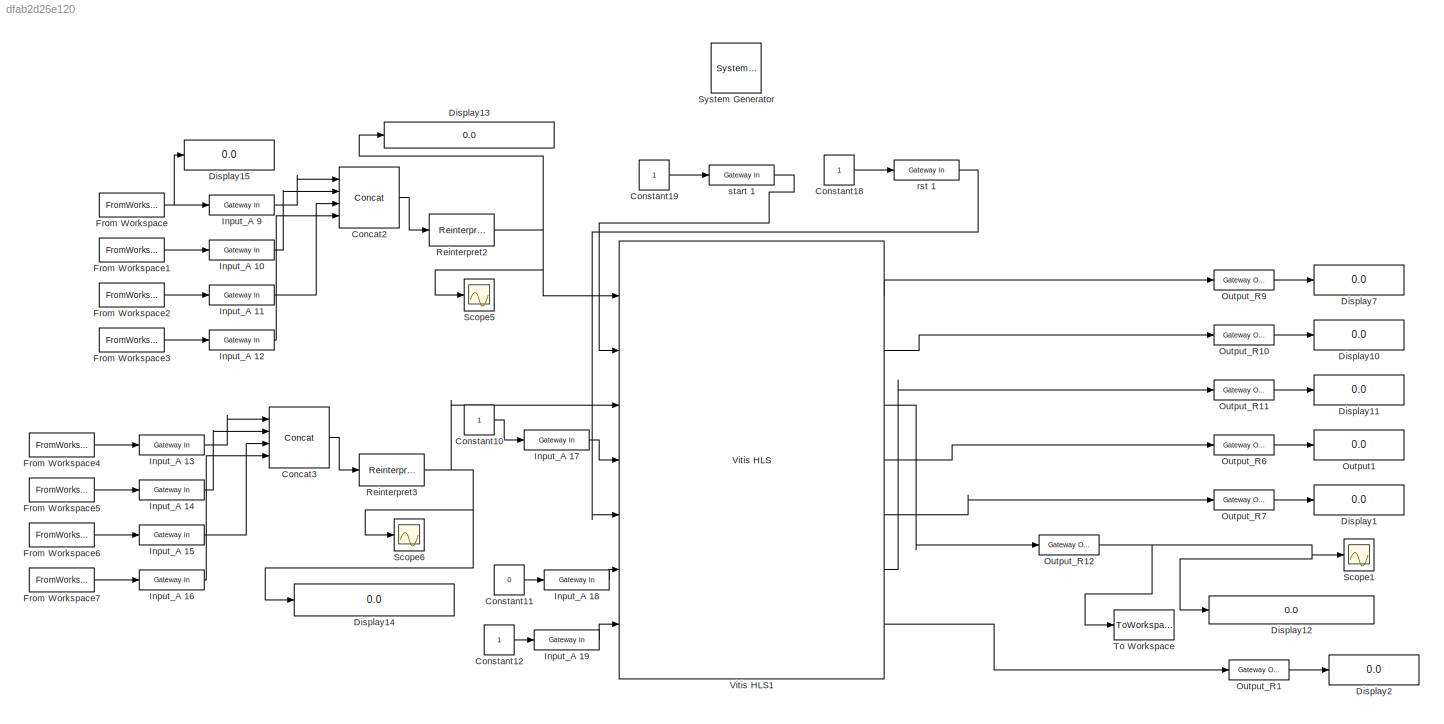
MODEL slx_dfab2d26e120
KIND model
CONFIG AbsTol = auto
CONFIG EnableMultiTasking = off
CONFIG FixedStep = auto
CONFIG MaxStep = auto
CONFIG MinStep = auto
CONFIG RelTol = 1e-3
CONFIG SampleTimeConstraint = Unconstrained
CONFIG SolverName = FixedStepDiscrete
CONFIG StartTime = 0.0
CONFIG StopTime = 55
BLOCK [Reference]  System Generator  REF=xbsIndex_r4/ System Generator
  AttributesFormatString = System\nGenerator
  Ports = []
  SourceBlock = xbsIndex_r4/ System Generator
  SourceType = Xilinx System Generator Block
  Tag = genX
  UserDataPersistent = on
BLOCK [Reference] Concat2  REF=hdlBasic/Concat
  Ports = [4, 1]
  SourceBlock = hdlBasic/Concat
  SourceType = Bus Concatenator Block
BLOCK [Reference] Concat3  REF=hdlBasic/Concat
  Ports = [4, 1]
  SourceBlock = hdlBasic/Concat
  SourceType = Bus Concatenator Block
BLOCK [Constant] Constant10
BLOCK [Constant] Constant11
  Value = 0
BLOCK [Constant] Constant12
BLOCK [Constant] Constant18
BLOCK [Constant] Constant19
BLOCK [Display] Display1
  Decimation = 1
  Ports = [1]
BLOCK [Display] Display10
  Decimation = 1
  Ports = [1]
BLOCK [Display] Display11
  Decimation = 1
  Ports = [1]
BLOCK [Display] Display12
  Decimation = 1
  Format = hex (Stored Integer)
  Ports = [1]
BLOCK [Display] Display13
  Decimation = 1
  Format = hex (Stored Integer)
  Ports = [1]
BLOCK [Display] Display14
  Decimation = 1
  Format = hex (Stored Integer)
  Ports = [1]
BLOCK [Display] Display15
  Decimation = 1
  Ports = [1]
BLOCK [Display] Display2
  Decimation = 1
  Ports = [1]
BLOCK [Display] Display7
  Decimation = 1
  Ports = [1]
BLOCK [FromWorkspace] From Workspace
  VariableName = a4
BLOCK [FromWorkspace] From Workspace1
  VariableName = a3
BLOCK [FromWorkspace] From Workspace2
  VariableName = a2
BLOCK [FromWorkspace] From Workspace3
  VariableName = a1
BLOCK [FromWorkspace] From Workspace4
  VariableName = b4
BLOCK [FromWorkspace] From Workspace5
  VariableName = b3
BLOCK [FromWorkspace] From Workspace6
  VariableName = b2
BLOCK [FromWorkspace] From Workspace7
  VariableName = b1
BLOCK [Reference] Input_A 10  REF=hdlBasic/Gateway In
  Ports = [1, 1]
  SourceBlock = hdlBasic/Gateway In
  SourceType = Gateway In Block
BLOCK [Reference] Input_A 11  REF=hdlBasic/Gateway In
  Ports = [1, 1]
  SourceBlock = hdlBasic/Gateway In
  SourceType = Gateway In Block
BLOCK [Reference] Input_A 12  REF=hdlBasic/Gateway In
  Ports = [1, 1]
  SourceBlock = hdlBasic/Gateway In
  SourceType = Gateway In Block
BLOCK [Reference] Input_A 13  REF=hdlBasic/Gateway In
  Ports = [1, 1]
  SourceBlock = hdlBasic/Gateway In
  SourceType = Gateway In Block
BLOCK [Reference] Input_A 14  REF=hdlBasic/Gateway In
  Ports = [1, 1]
  SourceBlock = hdlBasic/Gateway In
  SourceType = Gateway In Block
BLOCK [Reference] Input_A 15  REF=hdlBasic/Gateway In
  Ports = [1, 1]
  SourceBlock = hdlBasic/Gateway In
  SourceType = Gateway In Block
BLOCK [Reference] Input_A 16  REF=hdlBasic/Gateway In
  Ports = [1, 1]
  SourceBlock = hdlBasic/Gateway In
  SourceType = Gateway In Block
BLOCK [Reference] Input_A 17  REF=hdlBasic/Gateway In
  Ports = [1, 1]
  SourceBlock = hdlBasic/Gateway In
  SourceType = Gateway In Block
BLOCK [Reference] Input_A 18  REF=hdlBasic/Gateway In
  Ports = [1, 1]
  SourceBlock = hdlBasic/Gateway In
  SourceType = Gateway In Block
BLOCK [Reference] Input_A 19  REF=hdlBasic/Gateway In
  Ports = [1, 1]
  SourceBlock = hdlBasic/Gateway In
  SourceType = Gateway In Block
BLOCK [Reference] Input_A 9  REF=hdlBasic/Gateway In
  Ports = [1, 1]
  SourceBlock = hdlBasic/Gateway In
  SourceType = Gateway In Block
BLOCK [Display] Output1
  Decimation = 1
  Ports = [1]
BLOCK [Reference] Output_R1  REF=hdlBasic/Gateway Out
  Ports = [1, 1]
  SourceBlock = hdlBasic/Gateway Out
  SourceType = Gateway Out Block
BLOCK [Reference] Output_R10  REF=hdlBasic/Gateway Out
  Ports = [1, 1]
  SourceBlock = hdlBasic/Gateway Out
  SourceType = Gateway Out Block
BLOCK [Reference] Output_R11  REF=hdlBasic/Gateway Out
  Ports = [1, 1]
  SourceBlock = hdlBasic/Gateway Out
  SourceType = Gateway Out Block
BLOCK [Reference] Output_R12  REF=hdlBasic/Gateway Out
  Ports = [1, 1]
  SourceBlock = hdlBasic/Gateway Out
  SourceType = Gateway Out Block
BLOCK [Reference] Output_R6  REF=hdlBasic/Gateway Out
  Ports = [1, 1]
  SourceBlock = hdlBasic/Gateway Out
  SourceType = Gateway Out Block
BLOCK [Reference] Output_R7  REF=hdlBasic/Gateway Out
  Ports = [1, 1]
  SourceBlock = hdlBasic/Gateway Out
  SourceType = Gateway Out Block
BLOCK [Reference] Output_R9  REF=hdlBasic/Gateway Out
  Ports = [1, 1]
  SourceBlock = hdlBasic/Gateway Out
  SourceType = Gateway Out Block
BLOCK [Reference] Reinterpret2  REF=hdlBasic/Reinterpret
  Ports = [1, 1]
  SourceBlock = hdlBasic/Reinterpret
  SourceType = Type Reinterpreter Block
BLOCK [Reference] Reinterpret3  REF=hdlBasic/Reinterpret
  Ports = [1, 1]
  SourceBlock = hdlBasic/Reinterpret
  SourceType = Type Reinterpreter Block
BLOCK [Scope] Scope1
  Floating = off
  NumInputPorts = 1
  Ports = [1]
  ScopeSpecificationString = Simulink.scopes.TimeScopeBlockCfg('CurrentConfiguration', extmgr.ConfigurationSet(extmgr.Configuration('Core','General UI',true),extmgr.Configuration('Core','Source UI',true),extmgr.Configuration('Sources','WiredSimulink',true,'DataLoggingVariableName','ScopeData1'),extmgr.Configuration('Visuals','Time Domain',true,'SerializedDisplays',{struct('MinYLimReal','-5875918453112868.00000','MaxYLimReal',...<+1521ch>
BLOCK [Scope] Scope5
  Floating = off
  NumInputPorts = 1
  Ports = [1]
  ScopeSpecificationString = Simulink.scopes.TimeScopeBlockCfg('CurrentConfiguration', extmgr.ConfigurationSet(extmgr.Configuration('Core','General UI',true),extmgr.Configuration('Core','Source UI',true),extmgr.Configuration('Sources','WiredSimulink',true,'DataLoggingVariableName','ScopeData2'),extmgr.Configuration('Visuals','Time Domain',true,'SerializedDisplays',{struct('MinYLimReal','-351844794679296.9375','MaxYLimReal','3...<+1515ch>
BLOCK [Scope] Scope6
  Floating = off
  NumInputPorts = 1
  Ports = [1]
  ScopeSpecificationString = Simulink.scopes.TimeScopeBlockCfg('CurrentConfiguration', extmgr.ConfigurationSet(extmgr.Configuration('Core','General UI',true),extmgr.Configuration('Core','Source UI',true),extmgr.Configuration('Sources','WiredSimulink',true,'DataLoggingVariableName','ScopeData3'),extmgr.Configuration('Visuals','Time Domain',true,'SerializedDisplays',{struct('MinYLimReal','97121.00000','MaxYLimReal','297121.0000...<+1435ch>
BLOCK [ToWorkspace] To Workspace
  MaxDataPoints = inf
  Ports = [1]
  SampleTime = -1
  Save2DSignal = 2-D array (concatenate along first dimension)
  SaveFormat = Timeseries
  VariableName = res
BLOCK [Reference] Vitis HLS1  REF=hdlBasic/Vitis HLS
  Ports = [7, 7]
  SourceBlock = hdlBasic/Vitis HLS
  SourceType = Xilinx High Level Synthesis Block
BLOCK [Reference] rst 1  REF=hdlBasic/Gateway In
  Ports = [1, 1]
  SourceBlock = hdlBasic/Gateway In
  SourceType = Gateway In Block
BLOCK [Reference] start 1  REF=hdlBasic/Gateway In
  Ports = [1, 1]
  SourceBlock = hdlBasic/Gateway In
  SourceType = Gateway In Block
LINE Concat2:1 -> Reinterpret2:1
LINE Concat3:1 -> Reinterpret3:1
LINE Constant10:1 -> Input_A 17:1
LINE Constant11:1 -> Input_A 18:1
LINE Constant12:1 -> Input_A 19:1
LINE Constant18:1 -> rst 1:1
LINE Constant19:1 -> start 1:1
LINE From Workspace1:1 -> Input_A 10:1
LINE From Workspace2:1 -> Input_A 11:1
LINE From Workspace3:1 -> Input_A 12:1
LINE From Workspace4:1 -> Input_A 13:1
LINE From Workspace5:1 -> Input_A 14:1
LINE From Workspace6:1 -> Input_A 15:1
LINE From Workspace7:1 -> Input_A 16:1
NET From Workspace:1 -> Display15:1, Input_A 9:1
LINE Input_A 10:1 -> Concat2:2
LINE Input_A 11:1 -> Concat2:3
LINE Input_A 12:1 -> Concat2:4
LINE Input_A 13:1 -> Concat3:1
LINE Input_A 14:1 -> Concat3:2
LINE Input_A 15:1 -> Concat3:3
LINE Input_A 16:1 -> Concat3:4
LINE Input_A 17:1 -> Vitis HLS1:4
LINE Input_A 18:1 -> Vitis HLS1:6
LINE Input_A 19:1 -> Vitis HLS1:7
LINE Input_A 9:1 -> Concat2:1
LINE Output_R10:1 -> Display10:1
LINE Output_R11:1 -> Display11:1
NET Output_R12:1 -> Display12:1, Scope1:1, To Workspace:1
LINE Output_R1:1 -> Display2:1
LINE Output_R6:1 -> Output1:1
LINE Output_R7:1 -> Display1:1
LINE Output_R9:1 -> Display7:1
NET Reinterpret2:1 -> Display13:1, Scope5:1, Vitis HLS1:1
NET Reinterpret3:1 -> Display14:1, Scope6:1, Vitis HLS1:3
LINE Vitis HLS1:1 -> Output_R9:1
LINE Vitis HLS1:2 -> Output_R10:1
LINE Vitis HLS1:3 -> Output_R12:1
LINE Vitis HLS1:4 -> Output_R6:1
LINE Vitis HLS1:5 -> Output_R7:1
LINE Vitis HLS1:6 -> Output_R11:1
LINE Vitis HLS1:7 -> Output_R1:1
LINE rst 1:1 -> Vitis HLS1:5
LINE start 1:1 -> Vitis HLS1:2
note: NET lines group one-source signal fan-out (src -> all destinations, sorted); 1:1 wires keep LINE
